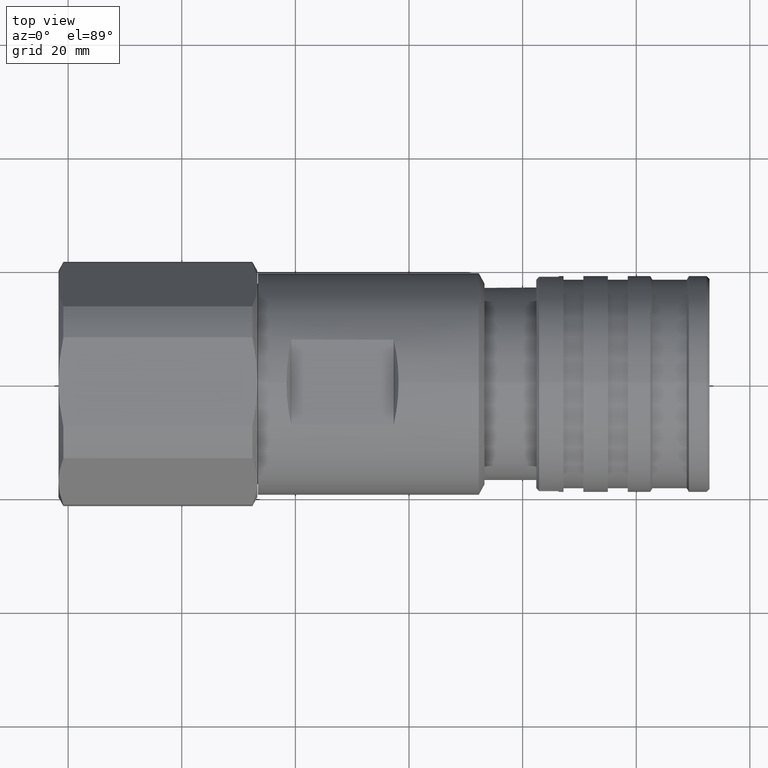
[diagram: clean part render]
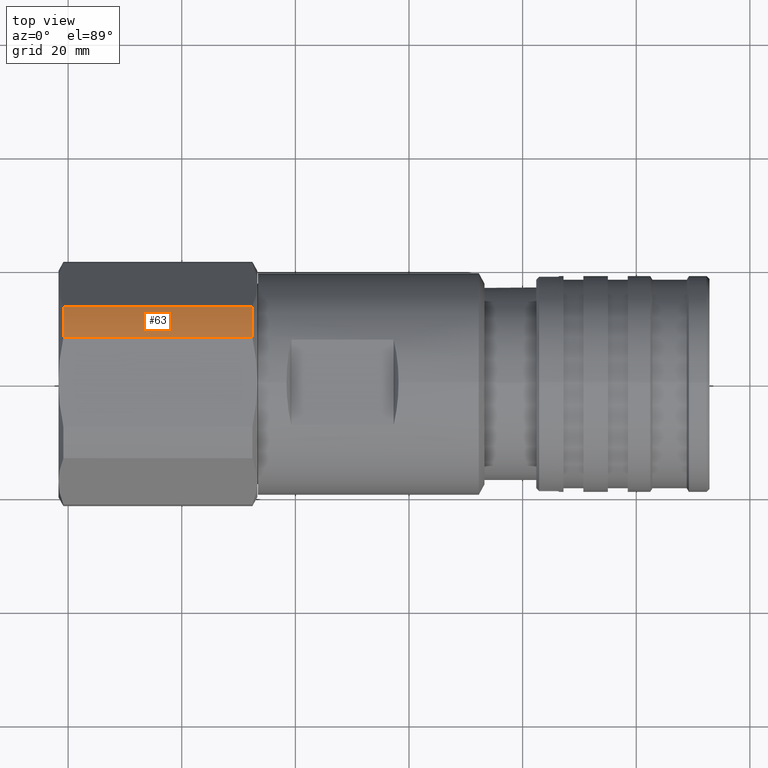
[diagram: same view with one face highlighted and labeled with its STEP entity id]
A machine part, top view. The second image highlights one B-rep face of the part: STEP entity #63.
In plain terms, the highlighted cylindrical surface (partial cylindrical patch) has radius 21.5 mm, axis along (1, -0, -0).
Its self-contained STEP definition (entity closure, byte-faithful):
#36 = CARTESIAN_POINT ( 'NONE',  ( -60.83397459621552600, 8.317563489154058600E-017, 8.698401715295804100E-016 ) ) ;
#37 = DIRECTION ( 'NONE',  ( 1.000000000000000000, -0.0000000000000000000, -0.0000000000000000000 ) ) ;
#39 = DIRECTION ( 'NONE',  ( 0.0000000000000000000, 0.0000000000000000000, -1.000000000000000000 ) ) ;
#51 = CARTESIAN_POINT ( 'NONE',  ( -26.69999999999994600, 13.37557461617389400, 16.83282518435822400 ) ) ;
#53 = DIRECTION ( 'NONE',  ( -1.000000000000000000, 0.0000000000000000000, 0.0000000000000000000 ) ) ;
#63 = ADVANCED_FACE ( 'NONE', ( #2130 ), #2131, .T. ) ;
#743 = CARTESIAN_POINT ( 'NONE',  ( -27.56602540378437300, 8.317563489154058600E-017, 8.698401715295804100E-016 ) ) ;
#744 = DIRECTION ( 'NONE',  ( 1.000000000000000000, -0.0000000000000000000, -0.0000000000000000000 ) ) ;
#745 = DIRECTION ( 'NONE',  ( 0.0000000000000000000, 0.0000000000000000000, -1.000000000000000000 ) ) ;
#784 = CARTESIAN_POINT ( 'NONE',  ( -26.69999999999994600, 7.889866919029739900, 20.00000000000000400 ) ) ;
#785 = DIRECTION ( 'NONE',  ( 1.000000000000000000, -0.0000000000000000000, -0.0000000000000000000 ) ) ;
#986 = CARTESIAN_POINT ( 'NONE',  ( -60.83397459621552600, 7.889866919029739900, 20.00000000000000400 ) ) ;
#987 = CARTESIAN_POINT ( 'NONE',  ( -60.83397459621552600, 13.37557461617389400, 16.83282518435822400 ) ) ;
#1000 = CARTESIAN_POINT ( 'NONE',  ( -27.56602540378437300, 13.37557461617389300, 16.83282518435822400 ) ) ;
#1044 = CARTESIAN_POINT ( 'NONE',  ( -27.56602540378437300, 7.889866919029738100, 20.00000000000000000 ) ) ;
#1359 = EDGE_CURVE ( 'NONE', #2901, #2900, #2678, .T. ) ;
#1361 = EDGE_CURVE ( 'NONE', #3546, #2901, #2677, .T. ) ;
#1389 = ORIENTED_EDGE ( 'NONE', *, *, #1359, .T. ) ;
#1390 = ORIENTED_EDGE ( 'NONE', *, *, #1953, .T. ) ;
#1391 = ORIENTED_EDGE ( 'NONE', *, *, #1942, .F. ) ;
#1392 = ORIENTED_EDGE ( 'NONE', *, *, #1361, .T. ) ;
#1461 = CIRCLE ( 'NONE', #2573, 21.50000000000000000 ) ;
#1470 = LINE ( 'NONE', #784, #1471 ) ;
#1471 = VECTOR ( 'NONE', #785, 1000.000000000000000 ) ;
#1942 = EDGE_CURVE ( 'NONE', #3546, #3590, #1461, .T. ) ;
#1953 = EDGE_CURVE ( 'NONE', #2900, #3590, #1470, .T. ) ;
#2044 = EDGE_LOOP ( 'NONE', ( #1389, #1390, #1391, #1392 ) ) ;
#2130 = FACE_OUTER_BOUND ( 'NONE', #2044, .T. ) ;
#2131 = CYLINDRICAL_SURFACE ( 'NONE', #2366, 21.50000000000000000 ) ;
#2366 = AXIS2_PLACEMENT_3D ( 'NONE', #2943, #2944, #2945 ) ;
#2499 = AXIS2_PLACEMENT_3D ( 'NONE', #36, #37, #39 ) ;
#2573 = AXIS2_PLACEMENT_3D ( 'NONE', #743, #744, #745 ) ;
#2677 = LINE ( 'NONE', #51, #2679 ) ;
#2678 = CIRCLE ( 'NONE', #2499, 21.49999999999999600 ) ;
#2679 = VECTOR ( 'NONE', #53, 1000.000000000000000 ) ;
#2900 = VERTEX_POINT ( 'NONE', #986 ) ;
#2901 = VERTEX_POINT ( 'NONE', #987 ) ;
#2943 = CARTESIAN_POINT ( 'NONE',  ( -26.69999999999994600, 8.317563489154058600E-017, 8.698401715295804100E-016 ) ) ;
#2944 = DIRECTION ( 'NONE',  ( 1.000000000000000000, -0.0000000000000000000, -0.0000000000000000000 ) ) ;
#2945 = DIRECTION ( 'NONE',  ( 0.0000000000000000000, 0.0000000000000000000, -1.000000000000000000 ) ) ;
#3546 = VERTEX_POINT ( 'NONE', #1000 ) ;
#3590 = VERTEX_POINT ( 'NONE', #1044 ) ;